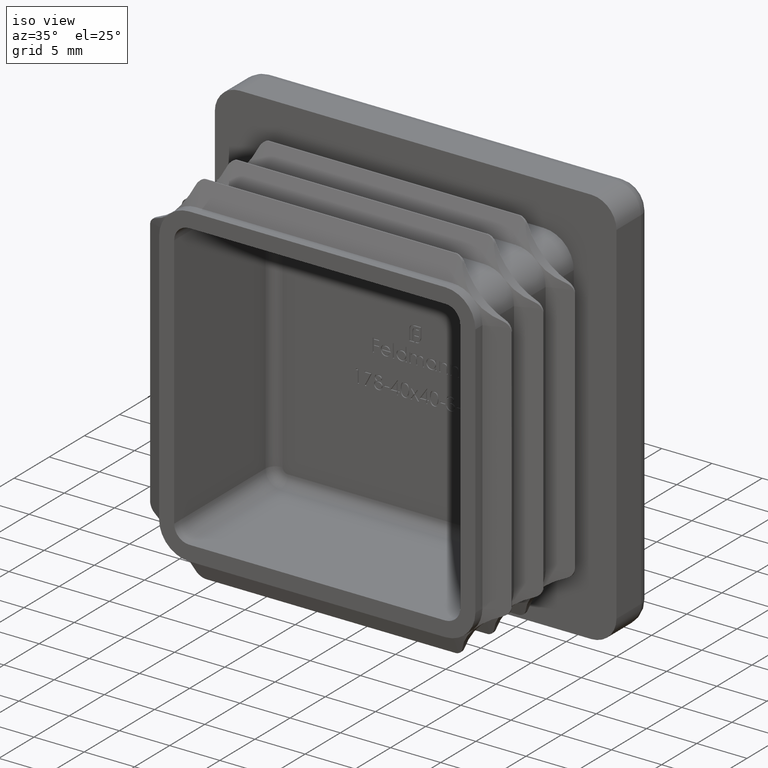
[diagram: clean part render]
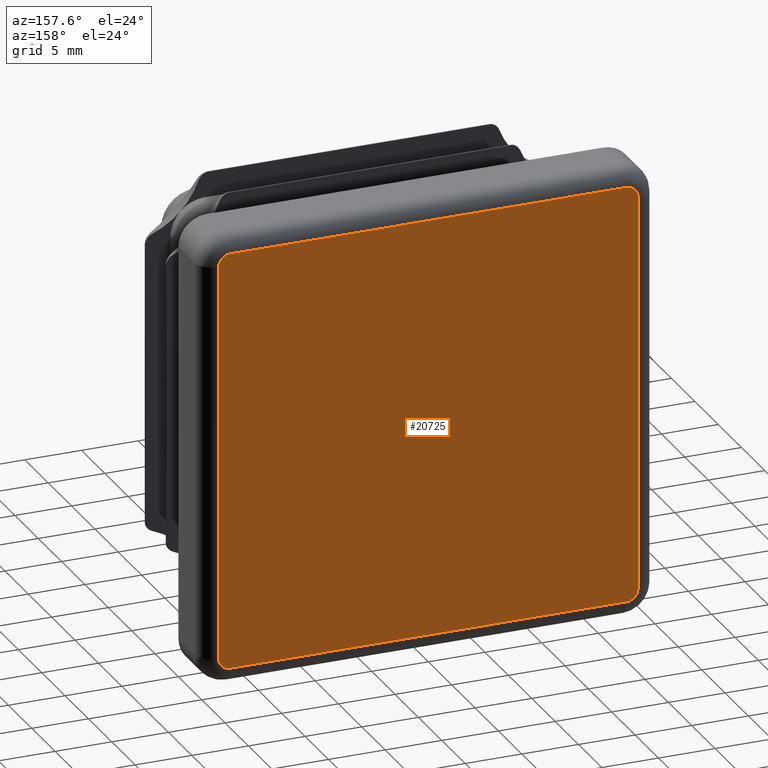
[diagram: tour spotlight — one face highlighted and labeled with its STEP entity id]
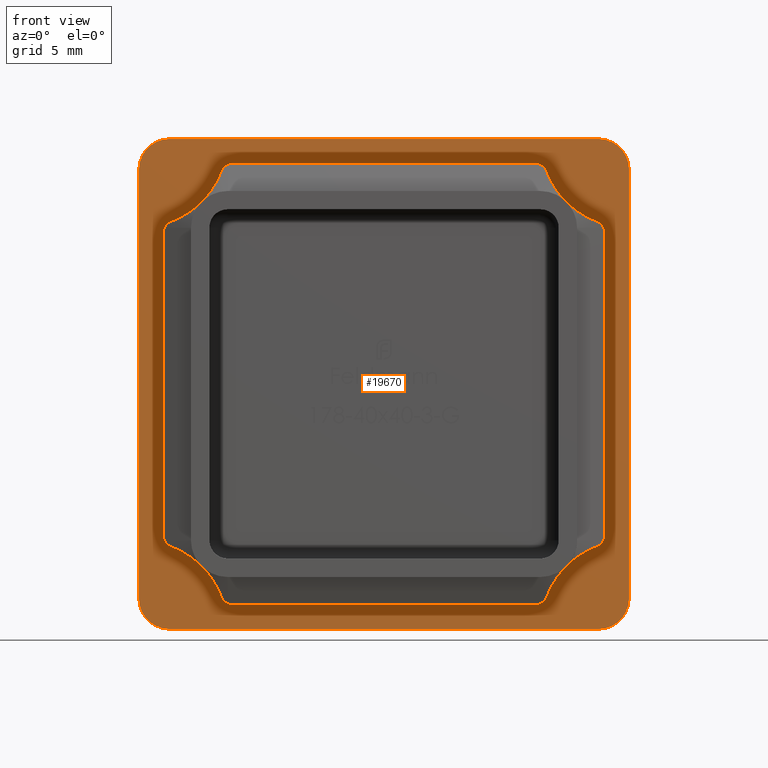
[diagram: tour spotlight — one face highlighted and labeled with its STEP entity id]
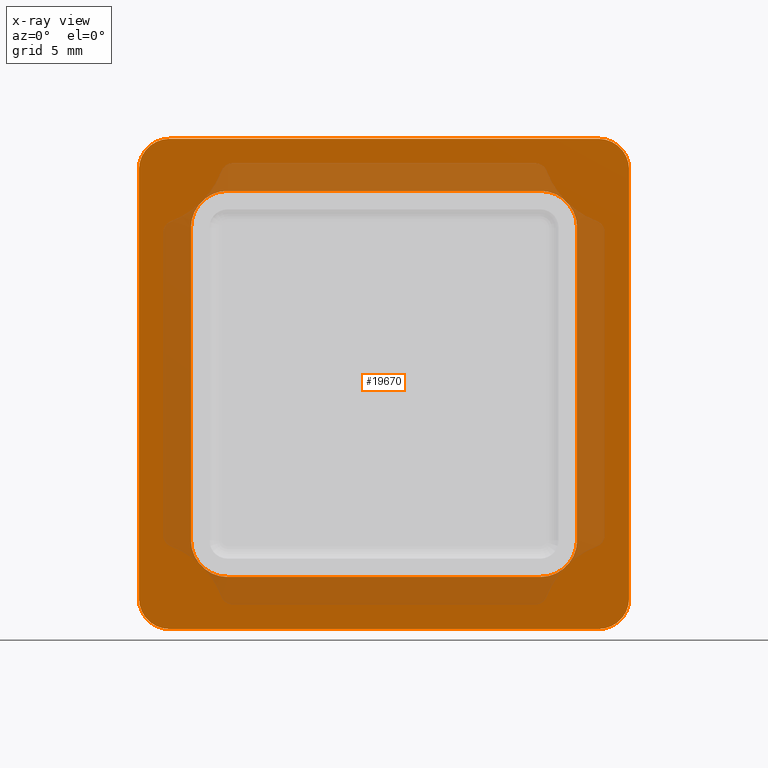
[diagram: x-ray of the same camera — body ghosted, this tour face saturated]
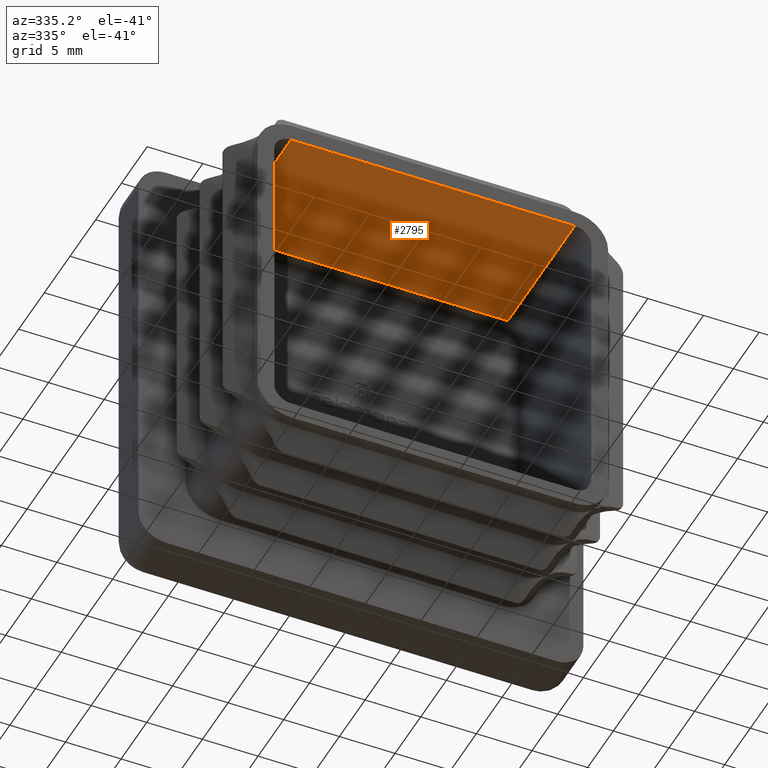
[diagram: tour spotlight — one face highlighted and labeled with its STEP entity id]
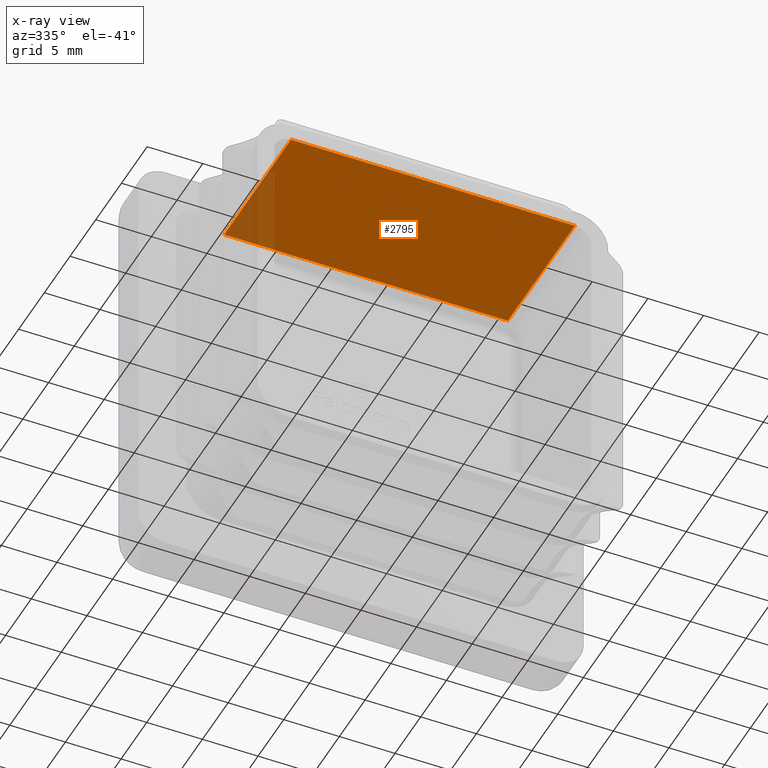
[diagram: x-ray of the same camera — body ghosted, this tour face saturated]
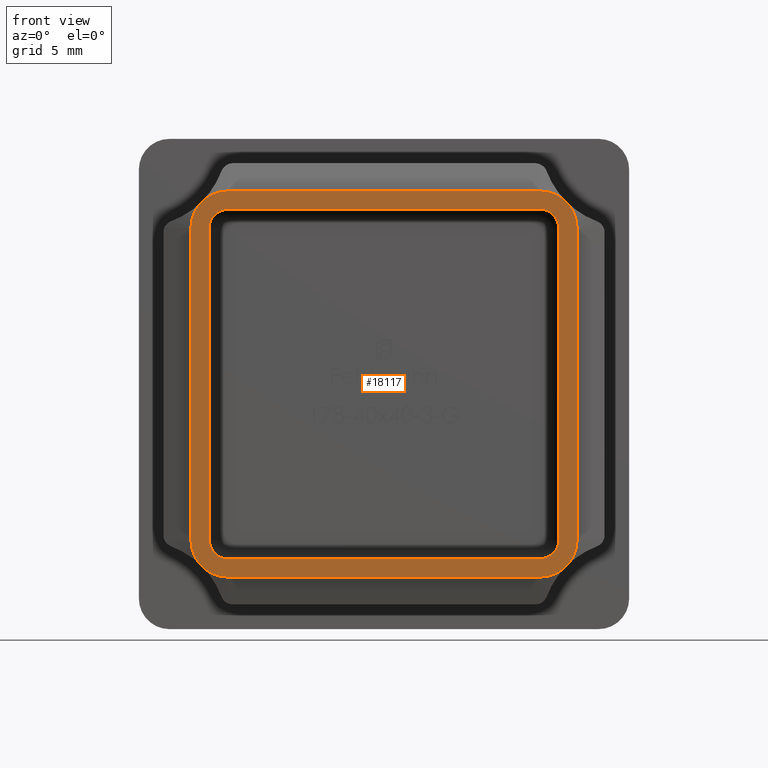
[diagram: tour spotlight — one face highlighted and labeled with its STEP entity id]
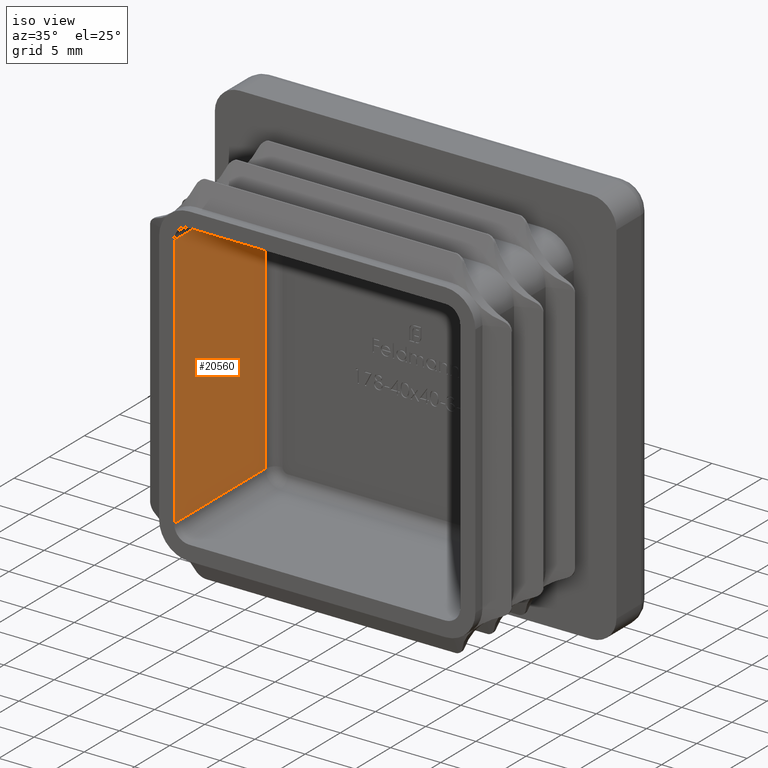
[diagram: tour spotlight — one face highlighted and labeled with its STEP entity id]
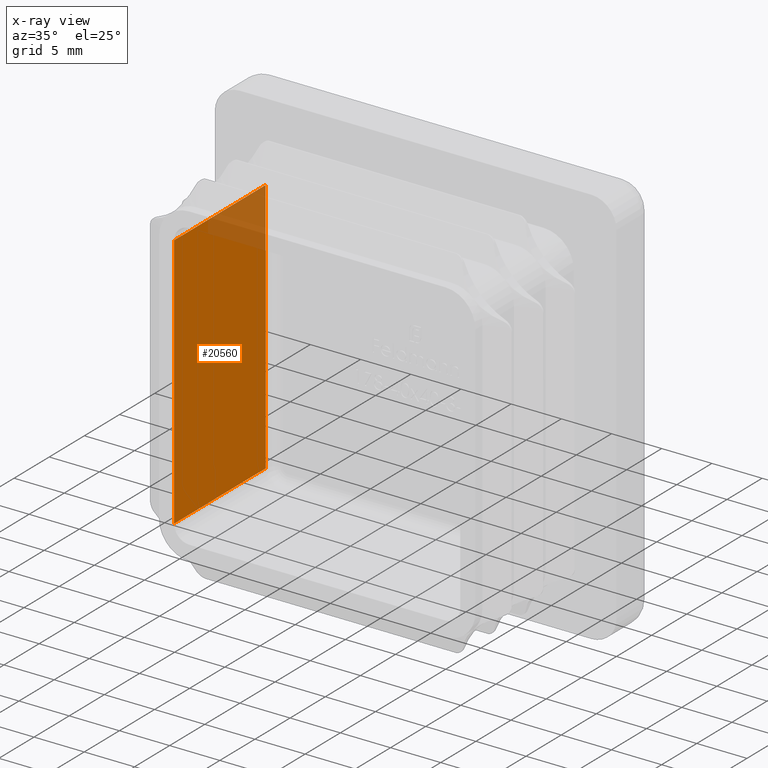
[diagram: x-ray of the same camera — body ghosted, this tour face saturated]
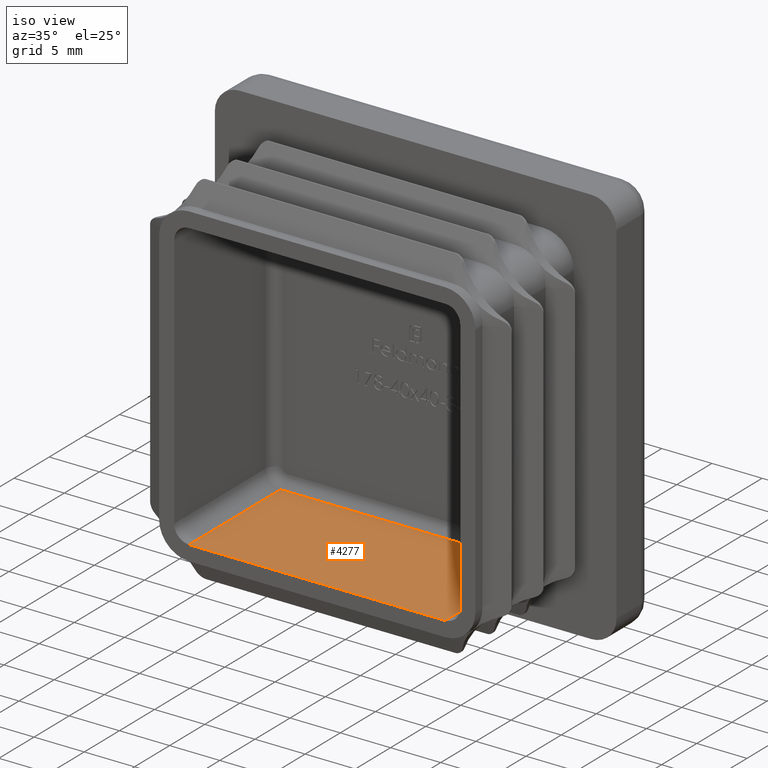
[diagram: tour spotlight — one face highlighted and labeled with its STEP entity id]
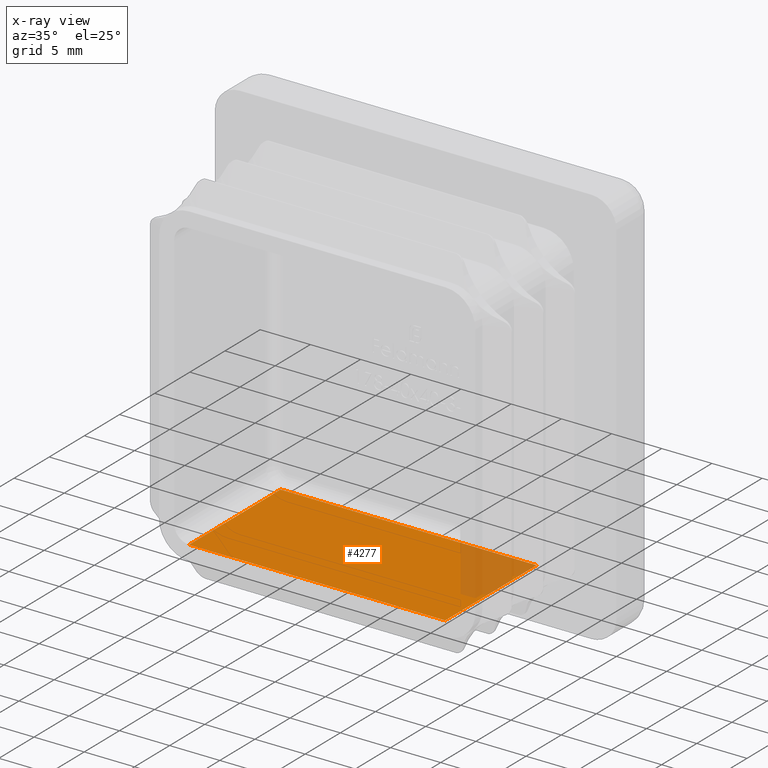
[diagram: x-ray of the same camera — body ghosted, this tour face saturated]
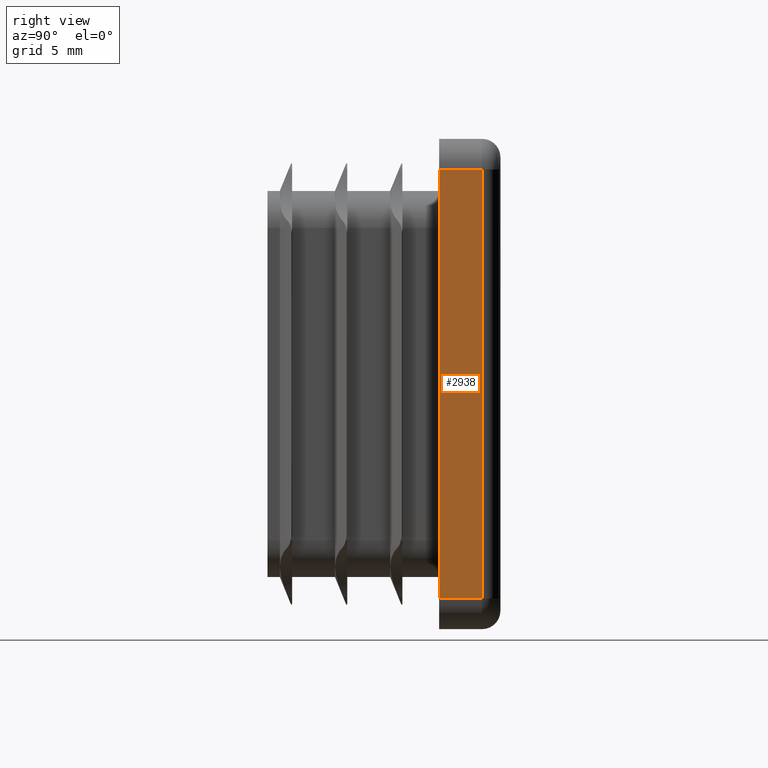
[diagram: tour spotlight — one face highlighted and labeled with its STEP entity id]
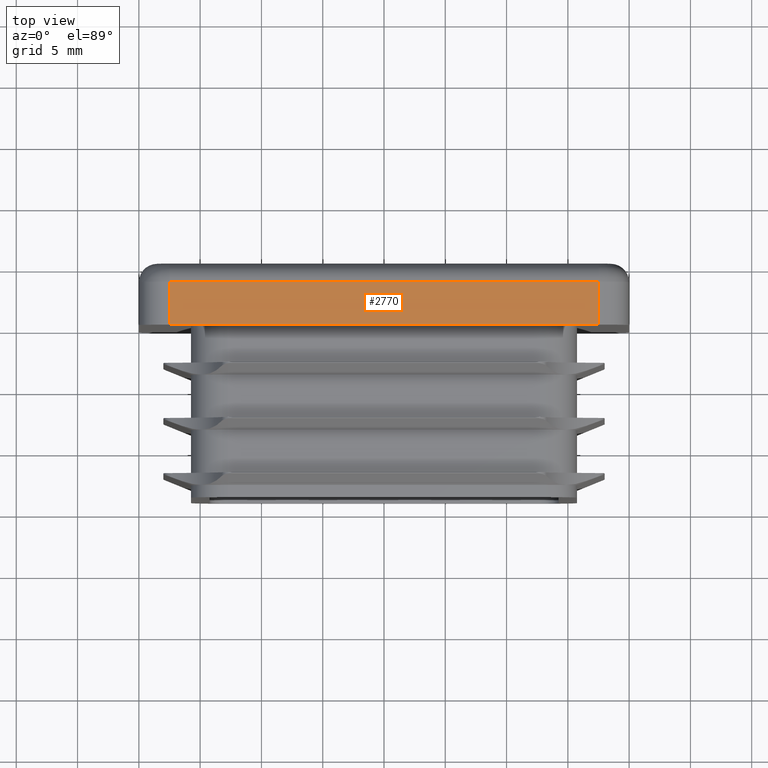
[diagram: tour spotlight — one face highlighted and labeled with its STEP entity id]
A machine part: a face-by-face anatomy tour. The part has 497 B-rep faces; the first image is the clean iso view, then the 8 largest visible faces are spotlighted one at a time (largest first), each with its STEP entity span.

Face 1 — auxiliary view, entity #20725. In plain terms, the highlighted planar face has unit normal (0, 1, 0).
Definition (entity closure, byte-faithful):
#76 = EDGE_CURVE ( 'NONE', #13953, #3182, #12025, .T. ) ;
#83 = PLANE ( 'NONE',  #16216 ) ;
#502 = AXIS2_PLACEMENT_3D ( 'NONE', #12357, #2187, #3598 ) ;
#743 = ORIENTED_EDGE ( 'NONE', *, *, #1273, .T. ) ;
#875 = VERTEX_POINT ( 'NONE', #969 ) ;
#969 = CARTESIAN_POINT ( 'NONE',  ( 18.50000000000000711, 5.000000000000000000, 17.50000000000000711 ) ) ;
#1273 = EDGE_CURVE ( 'NONE', #2897, #15196, #2217, .T. ) ;
#1669 = VERTEX_POINT ( 'NONE', #13270 ) ;
#1856 = CIRCLE ( 'NONE', #7350, 1.000000000000000888 ) ;
#2137 = EDGE_CURVE ( 'NONE', #7413, #875, #2987, .T. ) ;
#2187 = DIRECTION ( 'NONE',  ( 0.000000000000000000, 1.000000000000000000, 0.000000000000000000 ) ) ;
#2217 = LINE ( 'NONE', #13955, #3532 ) ;
#2421 = ORIENTED_EDGE ( 'NONE', *, *, #15098, .T. ) ;
#2897 = VERTEX_POINT ( 'NONE', #20326 ) ;
#2987 = CIRCLE ( 'NONE', #7103, 1.000000000000000888 ) ;
#3182 = VERTEX_POINT ( 'NONE', #16468 ) ;
#3398 = DIRECTION ( 'NONE',  ( 0.000000000000000000, 1.000000000000000000, 0.000000000000000000 ) ) ;
#3532 = VECTOR ( 'NONE', #3810, 1000.000000000000000 ) ;
#3598 = DIRECTION ( 'NONE',  ( 0.000000000000000000, 0.000000000000000000, 1.000000000000000000 ) ) ;
#3810 = DIRECTION ( 'NONE',  ( -1.000000000000000000, 0.000000000000000000, 0.000000000000000000 ) ) ;
#4468 = DIRECTION ( 'NONE',  ( 0.000000000000000000, 0.000000000000000000, 1.000000000000000000 ) ) ;
#4718 = CARTESIAN_POINT ( 'NONE',  ( 18.50000000000000355, 5.000000000000000000, -17.49999999999999645 ) ) ;
#5167 = ORIENTED_EDGE ( 'NONE', *, *, #7731, .T. ) ;
#5865 = ORIENTED_EDGE ( 'NONE', *, *, #76, .T. ) ;
#5988 = EDGE_LOOP ( 'NONE', ( #11065, #9844, #14048, #5167, #743, #2421, #6737, #5865 ) ) ;
#6141 = CARTESIAN_POINT ( 'NONE',  ( 17.50000000000000711, 5.000000000000000000, 18.50000000000000355 ) ) ;
#6332 = DIRECTION ( 'NONE',  ( 0.000000000000000000, 1.000000000000000000, 0.000000000000000000 ) ) ;
#6339 = EDGE_CURVE ( 'NONE', #875, #19855, #12445, .T. ) ;
#6352 = VECTOR ( 'NONE', #14290, 1000.000000000000000 ) ;
#6737 = ORIENTED_EDGE ( 'NONE', *, *, #6769, .T. ) ;
#6769 = EDGE_CURVE ( 'NONE', #1669, #13953, #11868, .T. ) ;
#7103 = AXIS2_PLACEMENT_3D ( 'NONE', #21624, #6332, #4468 ) ;
#7350 = AXIS2_PLACEMENT_3D ( 'NONE', #21500, #9743, #19654 ) ;
#7413 = VERTEX_POINT ( 'NONE', #6141 ) ;
#7428 = CARTESIAN_POINT ( 'NONE',  ( -18.49999999999999645, 5.000000000000000000, 17.50000000000000711 ) ) ;
#7731 = EDGE_CURVE ( 'NONE', #19855, #2897, #12953, .T. ) ;
#9286 = DIRECTION ( 'NONE',  ( 0.000000000000000000, 1.000000000000000000, 0.000000000000000000 ) ) ;
#9740 = EDGE_CURVE ( 'NONE', #3182, #7413, #20570, .T. ) ;
#9743 = DIRECTION ( 'NONE',  ( 0.000000000000000000, 1.000000000000000000, 0.000000000000000000 ) ) ;
#9844 = ORIENTED_EDGE ( 'NONE', *, *, #2137, .T. ) ;
#10998 = CARTESIAN_POINT ( 'NONE',  ( 17.50000000000000711, 5.000000000000000000, -17.49999999999999645 ) ) ;
#11065 = ORIENTED_EDGE ( 'NONE', *, *, #9740, .T. ) ;
#11868 = LINE ( 'NONE', #7428, #6352 ) ;
#11919 = DIRECTION ( 'NONE',  ( 0.000000000000000000, -0.000000000000000000, 1.000000000000000000 ) ) ;
#12025 = CIRCLE ( 'NONE', #502, 1.000000000000000888 ) ;
#12357 = CARTESIAN_POINT ( 'NONE',  ( -17.49999999999999645, 5.000000000000000000, 17.50000000000000355 ) ) ;
#12445 = LINE ( 'NONE', #13711, #20906 ) ;
#12953 = CIRCLE ( 'NONE', #19024, 1.000000000000000888 ) ;
#13270 = CARTESIAN_POINT ( 'NONE',  ( -18.50000000000000000, 5.000000000000000000, -17.49999999999999645 ) ) ;
#13497 = CARTESIAN_POINT ( 'NONE',  ( 0.000000000000000000, 5.000000000000000000, 0.000000000000000000 ) ) ;
#13711 = CARTESIAN_POINT ( 'NONE',  ( 18.50000000000000355, 5.000000000000000000, -17.49999999999999645 ) ) ;
#13953 = VERTEX_POINT ( 'NONE', #19785 ) ;
#13955 = CARTESIAN_POINT ( 'NONE',  ( -17.49999999999999645, 5.000000000000000000, -18.49999999999999645 ) ) ;
#14048 = ORIENTED_EDGE ( 'NONE', *, *, #6339, .T. ) ;
#14290 = DIRECTION ( 'NONE',  ( 8.673617379884035472E-17, -0.000000000000000000, 1.000000000000000000 ) ) ;
#15098 = EDGE_CURVE ( 'NONE', #15196, #1669, #1856, .T. ) ;
#15196 = VERTEX_POINT ( 'NONE', #19866 ) ;
#16216 = AXIS2_PLACEMENT_3D ( 'NONE', #13497, #3398, #11919 ) ;
#16349 = VECTOR ( 'NONE', #19791, 1000.000000000000000 ) ;
#16468 = CARTESIAN_POINT ( 'NONE',  ( -17.49999999999999645, 5.000000000000000000, 18.50000000000000711 ) ) ;
#18075 = CARTESIAN_POINT ( 'NONE',  ( 17.50000000000001066, 5.000000000000000000, 18.50000000000000355 ) ) ;
#18732 = DIRECTION ( 'NONE',  ( -8.673617379884035472E-17, 0.000000000000000000, -1.000000000000000000 ) ) ;
#19024 = AXIS2_PLACEMENT_3D ( 'NONE', #10998, #9286, #19274 ) ;
#19274 = DIRECTION ( 'NONE',  ( 0.000000000000000000, 0.000000000000000000, 1.000000000000000000 ) ) ;
#19654 = DIRECTION ( 'NONE',  ( 0.000000000000000000, 0.000000000000000000, 1.000000000000000000 ) ) ;
#19785 = CARTESIAN_POINT ( 'NONE',  ( -18.49999999999999645, 5.000000000000000000, 17.50000000000000355 ) ) ;
#19791 = DIRECTION ( 'NONE',  ( 1.000000000000000000, -0.000000000000000000, 0.000000000000000000 ) ) ;
#19855 = VERTEX_POINT ( 'NONE', #4718 ) ;
#19866 = CARTESIAN_POINT ( 'NONE',  ( -17.49999999999999645, 5.000000000000000000, -18.49999999999999645 ) ) ;
#20326 = CARTESIAN_POINT ( 'NONE',  ( 17.50000000000000711, 5.000000000000000000, -18.50000000000000000 ) ) ;
#20570 = LINE ( 'NONE', #18075, #16349 ) ;
#20725 = ADVANCED_FACE ( 'NONE', ( #21869 ), #83, .T. ) ;
#20906 = VECTOR ( 'NONE', #18732, 1000.000000000000000 ) ;
#21500 = CARTESIAN_POINT ( 'NONE',  ( -17.49999999999999645, 5.000000000000000000, -17.49999999999999645 ) ) ;
#21624 = CARTESIAN_POINT ( 'NONE',  ( 17.50000000000000711, 5.000000000000000000, 17.50000000000000711 ) ) ;
#21869 = FACE_OUTER_BOUND ( 'NONE', #5988, .T. ) ;

Face 2 — front view, entity #19670. An x-ray twin of the same camera follows (body ghosted, this face saturated) — the face is partly hidden behind the body. In plain terms, the highlighted planar face has unit normal (0, 1, 0).
Definition (entity closure, byte-faithful):
#105 = VERTEX_POINT ( 'NONE', #10587 ) ;
#304 = DIRECTION ( 'NONE',  ( 0.000000000000000000, 0.000000000000000000, 1.000000000000000000 ) ) ;
#381 = DIRECTION ( 'NONE',  ( 0.000000000000000000, -1.000000000000000000, 0.000000000000000000 ) ) ;
#394 = DIRECTION ( 'NONE',  ( -4.163336342344339393E-15, 0.000000000000000000, 1.000000000000000000 ) ) ;
#668 = DIRECTION ( 'NONE',  ( -0.000000000000000000, -0.000000000000000000, 1.000000000000000000 ) ) ;
#745 = EDGE_CURVE ( 'NONE', #8630, #8664, #20262, .T. ) ;
#751 = VERTEX_POINT ( 'NONE', #21510 ) ;
#1225 = FACE_BOUND ( 'NONE', #2468, .T. ) ;
#1283 = DIRECTION ( 'NONE',  ( 8.673617379884035472E-17, 0.000000000000000000, 1.000000000000000000 ) ) ;
#1375 = VECTOR ( 'NONE', #668, 1000.000000000000000 ) ;
#1513 = AXIS2_PLACEMENT_3D ( 'NONE', #8090, #19768, #19987 ) ;
#1735 = CARTESIAN_POINT ( 'NONE',  ( -15.75000000000000000, 0.000000000000000000, -12.75000000000000178 ) ) ;
#1746 = EDGE_CURVE ( 'NONE', #105, #13873, #11494, .T. ) ;
#1782 = CARTESIAN_POINT ( 'NONE',  ( 15.75000000000000000, 0.000000000000000000, -12.75000000000000178 ) ) ;
#1872 = EDGE_CURVE ( 'NONE', #751, #21606, #9919, .T. ) ;
#2008 = VERTEX_POINT ( 'NONE', #9456 ) ;
#2064 = VERTEX_POINT ( 'NONE', #1735 ) ;
#2158 = CIRCLE ( 'NONE', #18394, 3.000000000000002665 ) ;
#2236 = LINE ( 'NONE', #10380, #20263 ) ;
#2468 = EDGE_LOOP ( 'NONE', ( #10266, #14045, #8171, #6992, #18797, #6392, #20020, #5650 ) ) ;
#2724 = AXIS2_PLACEMENT_3D ( 'NONE', #19861, #7758, #9810 ) ;
#2910 = CARTESIAN_POINT ( 'NONE',  ( -19.99999999999999645, 0.000000000000000000, -19.99999999999999645 ) ) ;
#2995 = CARTESIAN_POINT ( 'NONE',  ( -12.75000000000000178, 0.000000000000000000, 15.75000000000000000 ) ) ;
#3086 = AXIS2_PLACEMENT_3D ( 'NONE', #11272, #21618, #4678 ) ;
#3310 = AXIS2_PLACEMENT_3D ( 'NONE', #17457, #381, #304 ) ;
#3351 = AXIS2_PLACEMENT_3D ( 'NONE', #8850, #5453, #394 ) ;
#3428 = VECTOR ( 'NONE', #11678, 1000.000000000000000 ) ;
#3436 = EDGE_CURVE ( 'NONE', #13093, #16418, #2158, .T. ) ;
#3541 = EDGE_CURVE ( 'NONE', #16501, #2008, #14894, .T. ) ;
#3985 = DIRECTION ( 'NONE',  ( 0.000000000000000000, 0.000000000000000000, 1.000000000000000000 ) ) ;
#4273 = CIRCLE ( 'NONE', #3086, 2.999999999999999112 ) ;
#4465 = DIRECTION ( 'NONE',  ( 2.721134864277344162E-16, -0.000000000000000000, -1.000000000000000000 ) ) ;
#4604 = CIRCLE ( 'NONE', #2724, 2.500000000000000444 ) ;
#4678 = DIRECTION ( 'NONE',  ( 0.000000000000000000, 0.000000000000000000, -1.000000000000000000 ) ) ;
#4744 = CARTESIAN_POINT ( 'NONE',  ( 20.00000000000000355, 0.000000000000000000, -19.99999999999999645 ) ) ;
#5161 = EDGE_CURVE ( 'NONE', #13873, #16501, #4273, .T. ) ;
#5223 = EDGE_CURVE ( 'NONE', #751, #8970, #6669, .T. ) ;
#5295 = CARTESIAN_POINT ( 'NONE',  ( -12.75000000000000178, 0.000000000000000000, 12.75000000000000178 ) ) ;
#5453 = DIRECTION ( 'NONE',  ( -0.000000000000000000, -1.000000000000000000, -0.000000000000000000 ) ) ;
#5523 = CARTESIAN_POINT ( 'NONE',  ( -19.99999999999999289, 0.000000000000000000, 20.00000000000000355 ) ) ;
#5650 = ORIENTED_EDGE ( 'NONE', *, *, #3436, .F. ) ;
#5796 = CARTESIAN_POINT ( 'NONE',  ( -12.75000000000000178, 0.000000000000000000, 15.75000000000000355 ) ) ;
#6008 = LINE ( 'NONE', #2995, #14461 ) ;
#6275 = DIRECTION ( 'NONE',  ( 1.000000000000000000, 0.000000000000000000, 0.000000000000000000 ) ) ;
#6392 = ORIENTED_EDGE ( 'NONE', *, *, #15679, .F. ) ;
#6417 = CARTESIAN_POINT ( 'NONE',  ( -17.49999999999999645, 0.000000000000000000, 17.50000000000000355 ) ) ;
#6669 = LINE ( 'NONE', #4744, #3428 ) ;
#6917 = ORIENTED_EDGE ( 'NONE', *, *, #5223, .F. ) ;
#6992 = ORIENTED_EDGE ( 'NONE', *, *, #5161, .F. ) ;
#7113 = ORIENTED_EDGE ( 'NONE', *, *, #1872, .T. ) ;
#7654 = VERTEX_POINT ( 'NONE', #17404 ) ;
#7758 = DIRECTION ( 'NONE',  ( -0.000000000000000000, -1.000000000000000000, -0.000000000000000000 ) ) ;
#8087 = CARTESIAN_POINT ( 'NONE',  ( -17.49999999999999645, 0.000000000000000000, -19.99999999999999645 ) ) ;
#8090 = CARTESIAN_POINT ( 'NONE',  ( -12.75000000000000178, -0.000000000000000000, -12.75000000000000178 ) ) ;
#8171 = ORIENTED_EDGE ( 'NONE', *, *, #3541, .F. ) ;
#8524 = ORIENTED_EDGE ( 'NONE', *, *, #12142, .T. ) ;
#8630 = VERTEX_POINT ( 'NONE', #21428 ) ;
#8664 = VERTEX_POINT ( 'NONE', #18571 ) ;
#8850 = CARTESIAN_POINT ( 'NONE',  ( 17.50000000000000711, 0.000000000000000000, 17.50000000000000711 ) ) ;
#8970 = VERTEX_POINT ( 'NONE', #20123 ) ;
#9233 = LINE ( 'NONE', #5523, #18203 ) ;
#9340 = ORIENTED_EDGE ( 'NONE', *, *, #745, .F. ) ;
#9428 = CARTESIAN_POINT ( 'NONE',  ( -15.75000000000000711, 0.000000000000000000, 12.75000000000000178 ) ) ;
#9456 = CARTESIAN_POINT ( 'NONE',  ( 15.75000000000000000, 0.000000000000000000, 12.75000000000000178 ) ) ;
#9734 = FACE_OUTER_BOUND ( 'NONE', #17920, .T. ) ;
#9801 = DIRECTION ( 'NONE',  ( -0.000000000000000000, -1.000000000000000000, -0.000000000000000000 ) ) ;
#9810 = DIRECTION ( 'NONE',  ( 0.000000000000000000, 0.000000000000000000, 1.000000000000000000 ) ) ;
#9919 = CIRCLE ( 'NONE', #3351, 2.499999999999998668 ) ;
#10266 = ORIENTED_EDGE ( 'NONE', *, *, #10863, .F. ) ;
#10380 = CARTESIAN_POINT ( 'NONE',  ( -19.99999999999999645, 0.000000000000000000, -19.99999999999999645 ) ) ;
#10397 = VERTEX_POINT ( 'NONE', #8087 ) ;
#10401 = DIRECTION ( 'NONE',  ( 0.000000000000000000, -1.000000000000000000, 0.000000000000000000 ) ) ;
#10425 = AXIS2_PLACEMENT_3D ( 'NONE', #16993, #15457, #16916 ) ;
#10587 = CARTESIAN_POINT ( 'NONE',  ( -12.75000000000000178, 0.000000000000000000, -15.75000000000000000 ) ) ;
#10623 = DIRECTION ( 'NONE',  ( 0.000000000000000000, 0.000000000000000000, 1.000000000000000000 ) ) ;
#10791 = CARTESIAN_POINT ( 'NONE',  ( 17.50000000000001066, 0.000000000000000000, 20.00000000000000355 ) ) ;
#10863 = EDGE_CURVE ( 'NONE', #13287, #13093, #6008, .T. ) ;
#11272 = CARTESIAN_POINT ( 'NONE',  ( 12.75000000000000178, 0.000000000000000000, -12.75000000000000178 ) ) ;
#11280 = VECTOR ( 'NONE', #1283, 1000.000000000000000 ) ;
#11494 = LINE ( 'NONE', #16383, #19451 ) ;
#11678 = DIRECTION ( 'NONE',  ( -8.673617379884035472E-17, -0.000000000000000000, -1.000000000000000000 ) ) ;
#11731 = DIRECTION ( 'NONE',  ( -1.000000000000000000, -0.000000000000000000, -0.000000000000000000 ) ) ;
#12142 = EDGE_CURVE ( 'NONE', #18968, #8970, #4604, .T. ) ;
#12165 = DIRECTION ( 'NONE',  ( 1.000000000000000000, 0.000000000000000000, 0.000000000000000000 ) ) ;
#12612 = CARTESIAN_POINT ( 'NONE',  ( 15.75000000000000000, 0.000000000000000000, 12.75000000000000178 ) ) ;
#12765 = ORIENTED_EDGE ( 'NONE', *, *, #18241, .F. ) ;
#13093 = VERTEX_POINT ( 'NONE', #5796 ) ;
#13169 = PLANE ( 'NONE',  #10425 ) ;
#13287 = VERTEX_POINT ( 'NONE', #13909 ) ;
#13873 = VERTEX_POINT ( 'NONE', #17552 ) ;
#13909 = CARTESIAN_POINT ( 'NONE',  ( 12.74999999999999822, 0.000000000000000000, 15.75000000000000000 ) ) ;
#14045 = ORIENTED_EDGE ( 'NONE', *, *, #14122, .F. ) ;
#14122 = EDGE_CURVE ( 'NONE', #2008, #13287, #14367, .T. ) ;
#14236 = ORIENTED_EDGE ( 'NONE', *, *, #20611, .F. ) ;
#14367 = CIRCLE ( 'NONE', #3310, 2.999999999999999112 ) ;
#14461 = VECTOR ( 'NONE', #11731, 1000.000000000000000 ) ;
#14894 = LINE ( 'NONE', #12612, #1375 ) ;
#15457 = DIRECTION ( 'NONE',  ( 0.000000000000000000, 1.000000000000000000, 0.000000000000000000 ) ) ;
#15552 = EDGE_CURVE ( 'NONE', #16418, #2064, #16958, .T. ) ;
#15679 = EDGE_CURVE ( 'NONE', #2064, #105, #16682, .T. ) ;
#15888 = CARTESIAN_POINT ( 'NONE',  ( -17.49999999999999645, 0.000000000000000000, -17.49999999999999645 ) ) ;
#15911 = VECTOR ( 'NONE', #4465, 1000.000000000000000 ) ;
#16016 = AXIS2_PLACEMENT_3D ( 'NONE', #15888, #21150, #3985 ) ;
#16359 = CIRCLE ( 'NONE', #17553, 2.499999999999998668 ) ;
#16383 = CARTESIAN_POINT ( 'NONE',  ( -12.75000000000000178, -0.000000000000000000, -15.75000000000000000 ) ) ;
#16418 = VERTEX_POINT ( 'NONE', #16535 ) ;
#16501 = VERTEX_POINT ( 'NONE', #1782 ) ;
#16535 = CARTESIAN_POINT ( 'NONE',  ( -15.75000000000000711, 0.000000000000000000, 12.75000000000000178 ) ) ;
#16682 = CIRCLE ( 'NONE', #1513, 2.999999999999999112 ) ;
#16843 = ORIENTED_EDGE ( 'NONE', *, *, #18428, .T. ) ;
#16916 = DIRECTION ( 'NONE',  ( 0.000000000000000000, -0.000000000000000000, 1.000000000000000000 ) ) ;
#16958 = LINE ( 'NONE', #9428, #15911 ) ;
#16993 = CARTESIAN_POINT ( 'NONE',  ( 0.000000000000000000, 0.000000000000000000, 0.000000000000000000 ) ) ;
#17146 = CIRCLE ( 'NONE', #16016, 2.500000000000000444 ) ;
#17404 = CARTESIAN_POINT ( 'NONE',  ( -17.49999999999999645, 0.000000000000000000, 20.00000000000000355 ) ) ;
#17457 = CARTESIAN_POINT ( 'NONE',  ( 12.74999999999999822, 0.000000000000000000, 12.75000000000000178 ) ) ;
#17552 = CARTESIAN_POINT ( 'NONE',  ( 12.75000000000000178, 0.000000000000000000, -15.75000000000000000 ) ) ;
#17553 = AXIS2_PLACEMENT_3D ( 'NONE', #6417, #9801, #18194 ) ;
#17920 = EDGE_LOOP ( 'NONE', ( #14236, #8524, #6917, #7113, #12765, #16843, #9340, #21835 ) ) ;
#18033 = EDGE_CURVE ( 'NONE', #8630, #10397, #17146, .T. ) ;
#18194 = DIRECTION ( 'NONE',  ( 0.000000000000000000, 0.000000000000000000, 1.000000000000000000 ) ) ;
#18203 = VECTOR ( 'NONE', #12165, 1000.000000000000000 ) ;
#18241 = EDGE_CURVE ( 'NONE', #7654, #21606, #9233, .T. ) ;
#18394 = AXIS2_PLACEMENT_3D ( 'NONE', #5295, #10401, #10623 ) ;
#18428 = EDGE_CURVE ( 'NONE', #7654, #8664, #16359, .T. ) ;
#18571 = CARTESIAN_POINT ( 'NONE',  ( -19.99999999999999289, 0.000000000000000000, 17.50000000000000711 ) ) ;
#18797 = ORIENTED_EDGE ( 'NONE', *, *, #1746, .F. ) ;
#18968 = VERTEX_POINT ( 'NONE', #21046 ) ;
#19451 = VECTOR ( 'NONE', #6275, 1000.000000000000000 ) ;
#19670 = ADVANCED_FACE ( 'NONE', ( #1225, #9734 ), #13169, .F. ) ;
#19768 = DIRECTION ( 'NONE',  ( 0.000000000000000000, -1.000000000000000000, 0.000000000000000000 ) ) ;
#19861 = CARTESIAN_POINT ( 'NONE',  ( 17.50000000000000711, 0.000000000000000000, -17.49999999999999645 ) ) ;
#19987 = DIRECTION ( 'NONE',  ( 0.000000000000000000, 0.000000000000000000, 1.000000000000000000 ) ) ;
#20020 = ORIENTED_EDGE ( 'NONE', *, *, #15552, .F. ) ;
#20123 = CARTESIAN_POINT ( 'NONE',  ( 20.00000000000000355, 0.000000000000000000, -17.49999999999999645 ) ) ;
#20262 = LINE ( 'NONE', #2910, #11280 ) ;
#20263 = VECTOR ( 'NONE', #20722, 1000.000000000000000 ) ;
#20611 = EDGE_CURVE ( 'NONE', #18968, #10397, #2236, .T. ) ;
#20722 = DIRECTION ( 'NONE',  ( -1.000000000000000000, -0.000000000000000000, -0.000000000000000000 ) ) ;
#21046 = CARTESIAN_POINT ( 'NONE',  ( 17.50000000000000711, 0.000000000000000000, -19.99999999999999645 ) ) ;
#21150 = DIRECTION ( 'NONE',  ( -0.000000000000000000, -1.000000000000000000, -0.000000000000000000 ) ) ;
#21428 = CARTESIAN_POINT ( 'NONE',  ( -19.99999999999999645, 0.000000000000000000, -17.49999999999999645 ) ) ;
#21510 = CARTESIAN_POINT ( 'NONE',  ( 20.00000000000000711, 0.000000000000000000, 17.50000000000000711 ) ) ;
#21606 = VERTEX_POINT ( 'NONE', #10791 ) ;
#21618 = DIRECTION ( 'NONE',  ( 0.000000000000000000, -1.000000000000000000, 0.000000000000000000 ) ) ;
#21835 = ORIENTED_EDGE ( 'NONE', *, *, #18033, .T. ) ;

Face 3 — auxiliary view, entity #2795. An x-ray twin of the same camera follows (body ghosted, this face saturated) — the face is partly hidden behind the body. In plain terms, the highlighted planar face has unit normal (0, 0, -1).
Definition (entity closure, byte-faithful):
#408 = CARTESIAN_POINT ( 'NONE',  ( 12.74999999999999822, -14.00000000000000000, 14.25000000000000000 ) ) ;
#1303 = ORIENTED_EDGE ( 'NONE', *, *, #21648, .F. ) ;
#1606 = EDGE_LOOP ( 'NONE', ( #10335, #4313, #1303, #9480 ) ) ;
#2240 = DIRECTION ( 'NONE',  ( -0.000000000000000000, 1.000000000000000000, -0.000000000000000000 ) ) ;
#2548 = CARTESIAN_POINT ( 'NONE',  ( -12.75000000000000178, -14.00000000000000000, 14.25000000000000000 ) ) ;
#2705 = FACE_OUTER_BOUND ( 'NONE', #1606, .T. ) ;
#2795 = ADVANCED_FACE ( 'NONE', ( #2705 ), #14507, .T. ) ;
#3832 = VECTOR ( 'NONE', #2240, 1000.000000000000000 ) ;
#4189 = EDGE_CURVE ( 'NONE', #5022, #9064, #7751, .T. ) ;
#4313 = ORIENTED_EDGE ( 'NONE', *, *, #13415, .T. ) ;
#4681 = LINE ( 'NONE', #20368, #15261 ) ;
#4806 = DIRECTION ( 'NONE',  ( -1.000000000000000000, -0.000000000000000000, -0.000000000000000000 ) ) ;
#5022 = VERTEX_POINT ( 'NONE', #17392 ) ;
#6165 = DIRECTION ( 'NONE',  ( -1.000000000000000000, 0.000000000000000000, -0.000000000000000000 ) ) ;
#7751 = LINE ( 'NONE', #20111, #8785 ) ;
#8785 = VECTOR ( 'NONE', #4806, 1000.000000000000000 ) ;
#9064 = VERTEX_POINT ( 'NONE', #12289 ) ;
#9239 = DIRECTION ( 'NONE',  ( 1.000000000000000000, -0.000000000000000000, -0.000000000000000000 ) ) ;
#9480 = ORIENTED_EDGE ( 'NONE', *, *, #4189, .T. ) ;
#9865 = EDGE_CURVE ( 'NONE', #9064, #12987, #4681, .T. ) ;
#10335 = ORIENTED_EDGE ( 'NONE', *, *, #9865, .T. ) ;
#12289 = CARTESIAN_POINT ( 'NONE',  ( -12.75000000000000178, -14.00000000000000000, 14.25000000000000000 ) ) ;
#12424 = CARTESIAN_POINT ( 'NONE',  ( -12.75000000000000178, -0.9999999999999991118, 14.25000000000000000 ) ) ;
#12583 = LINE ( 'NONE', #408, #3832 ) ;
#12626 = VERTEX_POINT ( 'NONE', #21330 ) ;
#12876 = DIRECTION ( 'NONE',  ( 0.000000000000000000, 0.000000000000000000, -1.000000000000000000 ) ) ;
#12987 = VERTEX_POINT ( 'NONE', #17529 ) ;
#13415 = EDGE_CURVE ( 'NONE', #12987, #12626, #18281, .T. ) ;
#14090 = VECTOR ( 'NONE', #9239, 1000.000000000000000 ) ;
#14507 = PLANE ( 'NONE',  #14595 ) ;
#14595 = AXIS2_PLACEMENT_3D ( 'NONE', #2548, #12876, #6165 ) ;
#15261 = VECTOR ( 'NONE', #21864, 1000.000000000000000 ) ;
#17392 = CARTESIAN_POINT ( 'NONE',  ( 12.74999999999999822, -14.00000000000000000, 14.25000000000000178 ) ) ;
#17529 = CARTESIAN_POINT ( 'NONE',  ( -12.75000000000000178, -0.9999999999999991118, 14.25000000000000000 ) ) ;
#18281 = LINE ( 'NONE', #12424, #14090 ) ;
#20111 = CARTESIAN_POINT ( 'NONE',  ( -12.75000000000000178, -14.00000000000000000, 14.25000000000000000 ) ) ;
#20368 = CARTESIAN_POINT ( 'NONE',  ( -12.75000000000000178, -14.00000000000000000, 14.25000000000000000 ) ) ;
#21330 = CARTESIAN_POINT ( 'NONE',  ( 12.74999999999999822, -0.9999999999999991118, 14.25000000000000000 ) ) ;
#21648 = EDGE_CURVE ( 'NONE', #5022, #12626, #12583, .T. ) ;
#21864 = DIRECTION ( 'NONE',  ( -0.000000000000000000, 1.000000000000000000, -0.000000000000000000 ) ) ;

Face 4 — front view, entity #18117. In plain terms, the highlighted planar face has unit normal (0, -1, 0).
Definition (entity closure, byte-faithful):
#461 = FACE_OUTER_BOUND ( 'NONE', #4499, .T. ) ;
#516 = DIRECTION ( 'NONE',  ( 0.000000000000000000, -1.000000000000000000, 0.000000000000000000 ) ) ;
#675 = VECTOR ( 'NONE', #6035, 1000.000000000000000 ) ;
#856 = EDGE_CURVE ( 'NONE', #8361, #7722, #7828, .T. ) ;
#924 = EDGE_CURVE ( 'NONE', #18624, #18327, #16544, .T. ) ;
#963 = LINE ( 'NONE', #2566, #675 ) ;
#998 = PLANE ( 'NONE',  #3964 ) ;
#1021 = AXIS2_PLACEMENT_3D ( 'NONE', #18154, #15068, #16826 ) ;
#1124 = CARTESIAN_POINT ( 'NONE',  ( 12.75000000000000178, -14.00000000000000000, -15.75000000000000000 ) ) ;
#1140 = DIRECTION ( 'NONE',  ( 0.000000000000000000, -1.000000000000000000, 0.000000000000000000 ) ) ;
#1147 = CARTESIAN_POINT ( 'NONE',  ( 12.75000000000000178, -14.00000000000000000, -12.75000000000000178 ) ) ;
#1574 = AXIS2_PLACEMENT_3D ( 'NONE', #4351, #1140, #2529 ) ;
#1678 = ORIENTED_EDGE ( 'NONE', *, *, #5184, .T. ) ;
#1727 = CIRCLE ( 'NONE', #1021, 1.499999999999999556 ) ;
#1736 = CIRCLE ( 'NONE', #5880, 3.000000000000002665 ) ;
#2529 = DIRECTION ( 'NONE',  ( 0.000000000000000000, 0.000000000000000000, 1.000000000000000000 ) ) ;
#2566 = CARTESIAN_POINT ( 'NONE',  ( -15.75000000000000711, -14.00000000000000000, 12.75000000000000178 ) ) ;
#2730 = CARTESIAN_POINT ( 'NONE',  ( -14.25000000000000355, -14.00000000000000000, 12.75000000000000178 ) ) ;
#2745 = CARTESIAN_POINT ( 'NONE',  ( -12.75000000000000178, -14.00000000000000000, -12.75000000000000178 ) ) ;
#3245 = DIRECTION ( 'NONE',  ( 0.000000000000000000, 0.000000000000000000, 1.000000000000000000 ) ) ;
#3420 = VERTEX_POINT ( 'NONE', #12238 ) ;
#3463 = EDGE_CURVE ( 'NONE', #5570, #11797, #8809, .T. ) ;
#3907 = CARTESIAN_POINT ( 'NONE',  ( -12.75000000000000178, -14.00000000000000000, -14.25000000000000000 ) ) ;
#3964 = AXIS2_PLACEMENT_3D ( 'NONE', #1147, #12861, #16259 ) ;
#4189 = EDGE_CURVE ( 'NONE', #5022, #9064, #7751, .T. ) ;
#4254 = ORIENTED_EDGE ( 'NONE', *, *, #856, .F. ) ;
#4285 = EDGE_CURVE ( 'NONE', #11797, #5022, #14852, .T. ) ;
#4330 = CARTESIAN_POINT ( 'NONE',  ( -12.75000000000000178, -14.00000000000000000, 15.75000000000000355 ) ) ;
#4351 = CARTESIAN_POINT ( 'NONE',  ( -12.75000000000000178, -14.00000000000000000, 12.75000000000000178 ) ) ;
#4469 = CIRCLE ( 'NONE', #1574, 1.500000000000001332 ) ;
#4499 = EDGE_LOOP ( 'NONE', ( #21797, #10655, #1678, #17550, #19844, #21690, #19200, #14800 ) ) ;
#4806 = DIRECTION ( 'NONE',  ( -1.000000000000000000, -0.000000000000000000, -0.000000000000000000 ) ) ;
#4988 = CARTESIAN_POINT ( 'NONE',  ( 12.75000000000000178, -14.00000000000000000, -12.75000000000000178 ) ) ;
#5022 = VERTEX_POINT ( 'NONE', #17392 ) ;
#5184 = EDGE_CURVE ( 'NONE', #3420, #18624, #21214, .T. ) ;
#5193 = AXIS2_PLACEMENT_3D ( 'NONE', #4988, #8175, #8321 ) ;
#5203 = CARTESIAN_POINT ( 'NONE',  ( -12.75000000000000178, -14.00000000000000000, -12.75000000000000178 ) ) ;
#5246 = CARTESIAN_POINT ( 'NONE',  ( 12.74999999999999822, -14.00000000000000000, 12.75000000000000178 ) ) ;
#5519 = CARTESIAN_POINT ( 'NONE',  ( 14.24999999999999645, -14.00000000000000000, 12.75000000000000178 ) ) ;
#5570 = VERTEX_POINT ( 'NONE', #9243 ) ;
#5880 = AXIS2_PLACEMENT_3D ( 'NONE', #17393, #516, #7295 ) ;
#6035 = DIRECTION ( 'NONE',  ( 2.721134864277344162E-16, -0.000000000000000000, -1.000000000000000000 ) ) ;
#6184 = DIRECTION ( 'NONE',  ( 0.000000000000000000, -1.000000000000000000, 0.000000000000000000 ) ) ;
#6262 = DIRECTION ( 'NONE',  ( 1.360567432138672081E-16, -0.000000000000000000, -1.000000000000000000 ) ) ;
#6481 = AXIS2_PLACEMENT_3D ( 'NONE', #2745, #19570, #14625 ) ;
#6521 = VECTOR ( 'NONE', #8025, 1000.000000000000000 ) ;
#6708 = CIRCLE ( 'NONE', #5193, 2.999999999999999112 ) ;
#6822 = CARTESIAN_POINT ( 'NONE',  ( -14.25000000000000355, -14.00000000000000000, 12.75000000000000178 ) ) ;
#6926 = CARTESIAN_POINT ( 'NONE',  ( -15.75000000000000711, -14.00000000000000000, 12.75000000000000178 ) ) ;
#7065 = DIRECTION ( 'NONE',  ( -0.000000000000000000, -0.000000000000000000, 1.000000000000000000 ) ) ;
#7295 = DIRECTION ( 'NONE',  ( 0.000000000000000000, 0.000000000000000000, 1.000000000000000000 ) ) ;
#7303 = ORIENTED_EDGE ( 'NONE', *, *, #4189, .F. ) ;
#7646 = CIRCLE ( 'NONE', #17324, 1.499999999999999556 ) ;
#7722 = VERTEX_POINT ( 'NONE', #7750 ) ;
#7750 = CARTESIAN_POINT ( 'NONE',  ( -14.25000000000000000, -14.00000000000000000, -12.75000000000000178 ) ) ;
#7751 = LINE ( 'NONE', #20111, #8785 ) ;
#7801 = VERTEX_POINT ( 'NONE', #1124 ) ;
#7828 = LINE ( 'NONE', #2730, #21848 ) ;
#8015 = DIRECTION ( 'NONE',  ( 0.000000000000000000, 0.000000000000000000, 1.000000000000000000 ) ) ;
#8025 = DIRECTION ( 'NONE',  ( -1.000000000000000000, -0.000000000000000000, -0.000000000000000000 ) ) ;
#8175 = DIRECTION ( 'NONE',  ( 0.000000000000000000, -1.000000000000000000, 0.000000000000000000 ) ) ;
#8321 = DIRECTION ( 'NONE',  ( 0.000000000000000000, 0.000000000000000000, -1.000000000000000000 ) ) ;
#8361 = VERTEX_POINT ( 'NONE', #6822 ) ;
#8369 = AXIS2_PLACEMENT_3D ( 'NONE', #9784, #6184, #8015 ) ;
#8537 = EDGE_CURVE ( 'NONE', #9064, #8361, #4469, .T. ) ;
#8563 = EDGE_CURVE ( 'NONE', #12167, #8590, #9508, .T. ) ;
#8590 = VERTEX_POINT ( 'NONE', #21217 ) ;
#8716 = DIRECTION ( 'NONE',  ( 0.000000000000000000, 0.000000000000000000, 1.000000000000000000 ) ) ;
#8767 = DIRECTION ( 'NONE',  ( -1.360567432138672081E-16, -0.000000000000000000, 1.000000000000000000 ) ) ;
#8776 = EDGE_CURVE ( 'NONE', #7722, #12167, #7646, .T. ) ;
#8785 = VECTOR ( 'NONE', #4806, 1000.000000000000000 ) ;
#8809 = LINE ( 'NONE', #5519, #20455 ) ;
#8944 = EDGE_CURVE ( 'NONE', #11174, #3420, #18737, .T. ) ;
#9014 = VECTOR ( 'NONE', #21737, 1000.000000000000000 ) ;
#9064 = VERTEX_POINT ( 'NONE', #12289 ) ;
#9243 = CARTESIAN_POINT ( 'NONE',  ( 14.25000000000000000, -14.00000000000000000, -12.75000000000000178 ) ) ;
#9271 = CARTESIAN_POINT ( 'NONE',  ( 15.75000000000000000, -14.00000000000000000, -12.75000000000000178 ) ) ;
#9508 = LINE ( 'NONE', #3907, #16878 ) ;
#9784 = CARTESIAN_POINT ( 'NONE',  ( 12.74999999999999822, -14.00000000000000000, 12.75000000000000178 ) ) ;
#10090 = EDGE_CURVE ( 'NONE', #18327, #20536, #1736, .T. ) ;
#10275 = EDGE_CURVE ( 'NONE', #20536, #10928, #963, .T. ) ;
#10278 = VECTOR ( 'NONE', #7065, 1000.000000000000000 ) ;
#10342 = CARTESIAN_POINT ( 'NONE',  ( 14.24999999999999645, -14.00000000000000000, 12.75000000000000178 ) ) ;
#10655 = ORIENTED_EDGE ( 'NONE', *, *, #8944, .T. ) ;
#10767 = EDGE_CURVE ( 'NONE', #8590, #5570, #1727, .T. ) ;
#10928 = VERTEX_POINT ( 'NONE', #13298 ) ;
#11174 = VERTEX_POINT ( 'NONE', #9271 ) ;
#11450 = CARTESIAN_POINT ( 'NONE',  ( -12.75000000000000178, -14.00000000000000000, -15.75000000000000000 ) ) ;
#11797 = VERTEX_POINT ( 'NONE', #10342 ) ;
#12076 = EDGE_CURVE ( 'NONE', #10928, #16004, #18082, .T. ) ;
#12167 = VERTEX_POINT ( 'NONE', #21788 ) ;
#12168 = EDGE_LOOP ( 'NONE', ( #4254, #15597, #7303, #18263, #19029, #16768, #16200, #16339 ) ) ;
#12238 = CARTESIAN_POINT ( 'NONE',  ( 15.75000000000000000, -14.00000000000000000, 12.75000000000000178 ) ) ;
#12289 = CARTESIAN_POINT ( 'NONE',  ( -12.75000000000000178, -14.00000000000000000, 14.25000000000000000 ) ) ;
#12861 = DIRECTION ( 'NONE',  ( 0.000000000000000000, -1.000000000000000000, 0.000000000000000000 ) ) ;
#13298 = CARTESIAN_POINT ( 'NONE',  ( -15.75000000000000000, -14.00000000000000000, -12.75000000000000178 ) ) ;
#13452 = AXIS2_PLACEMENT_3D ( 'NONE', #5246, #13603, #8716 ) ;
#13524 = LINE ( 'NONE', #11450, #9014 ) ;
#13603 = DIRECTION ( 'NONE',  ( 0.000000000000000000, -1.000000000000000000, 0.000000000000000000 ) ) ;
#14101 = EDGE_CURVE ( 'NONE', #7801, #11174, #6708, .T. ) ;
#14486 = DIRECTION ( 'NONE',  ( 1.000000000000000000, 0.000000000000000000, 0.000000000000000000 ) ) ;
#14625 = DIRECTION ( 'NONE',  ( 0.000000000000000000, 0.000000000000000000, 1.000000000000000000 ) ) ;
#14800 = ORIENTED_EDGE ( 'NONE', *, *, #16140, .T. ) ;
#14852 = CIRCLE ( 'NONE', #13452, 1.499999999999999556 ) ;
#15068 = DIRECTION ( 'NONE',  ( 0.000000000000000000, -1.000000000000000000, 0.000000000000000000 ) ) ;
#15580 = FACE_BOUND ( 'NONE', #12168, .T. ) ;
#15597 = ORIENTED_EDGE ( 'NONE', *, *, #8537, .F. ) ;
#16004 = VERTEX_POINT ( 'NONE', #21307 ) ;
#16140 = EDGE_CURVE ( 'NONE', #16004, #7801, #13524, .T. ) ;
#16200 = ORIENTED_EDGE ( 'NONE', *, *, #8563, .F. ) ;
#16259 = DIRECTION ( 'NONE',  ( 0.000000000000000000, -0.000000000000000000, -1.000000000000000000 ) ) ;
#16339 = ORIENTED_EDGE ( 'NONE', *, *, #8776, .F. ) ;
#16544 = LINE ( 'NONE', #17910, #6521 ) ;
#16768 = ORIENTED_EDGE ( 'NONE', *, *, #10767, .F. ) ;
#16826 = DIRECTION ( 'NONE',  ( 0.000000000000000000, 0.000000000000000000, -1.000000000000000000 ) ) ;
#16878 = VECTOR ( 'NONE', #14486, 1000.000000000000000 ) ;
#17148 = CARTESIAN_POINT ( 'NONE',  ( 15.75000000000000000, -14.00000000000000000, 12.75000000000000178 ) ) ;
#17324 = AXIS2_PLACEMENT_3D ( 'NONE', #5203, #20353, #3245 ) ;
#17392 = CARTESIAN_POINT ( 'NONE',  ( 12.74999999999999822, -14.00000000000000000, 14.25000000000000178 ) ) ;
#17393 = CARTESIAN_POINT ( 'NONE',  ( -12.75000000000000178, -14.00000000000000000, 12.75000000000000178 ) ) ;
#17550 = ORIENTED_EDGE ( 'NONE', *, *, #924, .T. ) ;
#17910 = CARTESIAN_POINT ( 'NONE',  ( -12.75000000000000178, -14.00000000000000000, 15.75000000000000000 ) ) ;
#18082 = CIRCLE ( 'NONE', #6481, 2.999999999999999112 ) ;
#18117 = ADVANCED_FACE ( 'NONE', ( #461, #15580 ), #998, .T. ) ;
#18154 = CARTESIAN_POINT ( 'NONE',  ( 12.75000000000000178, -14.00000000000000000, -12.75000000000000178 ) ) ;
#18263 = ORIENTED_EDGE ( 'NONE', *, *, #4285, .F. ) ;
#18327 = VERTEX_POINT ( 'NONE', #4330 ) ;
#18351 = CARTESIAN_POINT ( 'NONE',  ( 12.74999999999999822, -14.00000000000000000, 15.75000000000000000 ) ) ;
#18624 = VERTEX_POINT ( 'NONE', #18351 ) ;
#18737 = LINE ( 'NONE', #17148, #10278 ) ;
#19029 = ORIENTED_EDGE ( 'NONE', *, *, #3463, .F. ) ;
#19200 = ORIENTED_EDGE ( 'NONE', *, *, #12076, .T. ) ;
#19570 = DIRECTION ( 'NONE',  ( 0.000000000000000000, -1.000000000000000000, 0.000000000000000000 ) ) ;
#19844 = ORIENTED_EDGE ( 'NONE', *, *, #10090, .T. ) ;
#20111 = CARTESIAN_POINT ( 'NONE',  ( -12.75000000000000178, -14.00000000000000000, 14.25000000000000000 ) ) ;
#20353 = DIRECTION ( 'NONE',  ( 0.000000000000000000, -1.000000000000000000, 0.000000000000000000 ) ) ;
#20455 = VECTOR ( 'NONE', #8767, 1000.000000000000000 ) ;
#20536 = VERTEX_POINT ( 'NONE', #6926 ) ;
#21214 = CIRCLE ( 'NONE', #8369, 2.999999999999999112 ) ;
#21217 = CARTESIAN_POINT ( 'NONE',  ( 12.75000000000000178, -14.00000000000000000, -14.25000000000000000 ) ) ;
#21307 = CARTESIAN_POINT ( 'NONE',  ( -12.75000000000000178, -14.00000000000000000, -15.75000000000000000 ) ) ;
#21690 = ORIENTED_EDGE ( 'NONE', *, *, #10275, .T. ) ;
#21737 = DIRECTION ( 'NONE',  ( 1.000000000000000000, 0.000000000000000000, 0.000000000000000000 ) ) ;
#21788 = CARTESIAN_POINT ( 'NONE',  ( -12.75000000000000178, -14.00000000000000000, -14.25000000000000000 ) ) ;
#21797 = ORIENTED_EDGE ( 'NONE', *, *, #14101, .T. ) ;
#21848 = VECTOR ( 'NONE', #6262, 1000.000000000000000 ) ;

Face 5 — iso view, entity #20560. An x-ray twin of the same camera follows (body ghosted, this face saturated) — the face is partly hidden behind the body. In plain terms, the highlighted planar face has unit normal (1, 0, 0).
Definition (entity closure, byte-faithful):
#308 = EDGE_CURVE ( 'NONE', #7629, #11741, #9140, .T. ) ;
#369 = DIRECTION ( 'NONE',  ( 1.360567432138672081E-16, 0.000000000000000000, -1.000000000000000000 ) ) ;
#856 = EDGE_CURVE ( 'NONE', #8361, #7722, #7828, .T. ) ;
#2730 = CARTESIAN_POINT ( 'NONE',  ( -14.25000000000000355, -14.00000000000000000, 12.75000000000000178 ) ) ;
#3726 = CARTESIAN_POINT ( 'NONE',  ( -14.25000000000000000, -0.9999999999999991118, -12.75000000000000178 ) ) ;
#3758 = EDGE_LOOP ( 'NONE', ( #11459, #5337, #18989, #16153 ) ) ;
#3864 = FACE_OUTER_BOUND ( 'NONE', #3758, .T. ) ;
#5180 = VECTOR ( 'NONE', #12941, 1000.000000000000000 ) ;
#5205 = CARTESIAN_POINT ( 'NONE',  ( -14.25000000000000355, -14.00000000000000000, 12.75000000000000178 ) ) ;
#5337 = ORIENTED_EDGE ( 'NONE', *, *, #308, .T. ) ;
#6262 = DIRECTION ( 'NONE',  ( 1.360567432138672081E-16, -0.000000000000000000, -1.000000000000000000 ) ) ;
#6822 = CARTESIAN_POINT ( 'NONE',  ( -14.25000000000000355, -14.00000000000000000, 12.75000000000000178 ) ) ;
#7629 = VERTEX_POINT ( 'NONE', #3726 ) ;
#7722 = VERTEX_POINT ( 'NONE', #7750 ) ;
#7750 = CARTESIAN_POINT ( 'NONE',  ( -14.25000000000000000, -14.00000000000000000, -12.75000000000000178 ) ) ;
#7828 = LINE ( 'NONE', #2730, #21848 ) ;
#8361 = VERTEX_POINT ( 'NONE', #6822 ) ;
#8615 = PLANE ( 'NONE',  #11957 ) ;
#8821 = DIRECTION ( 'NONE',  ( 1.000000000000000000, 0.000000000000000000, 1.360567432138672081E-16 ) ) ;
#9140 = LINE ( 'NONE', #16477, #5180 ) ;
#9889 = CARTESIAN_POINT ( 'NONE',  ( -14.25000000000000355, -14.00000000000000000, 12.75000000000000178 ) ) ;
#11406 = EDGE_CURVE ( 'NONE', #7722, #7629, #15745, .T. ) ;
#11459 = ORIENTED_EDGE ( 'NONE', *, *, #11406, .T. ) ;
#11741 = VERTEX_POINT ( 'NONE', #17047 ) ;
#11957 = AXIS2_PLACEMENT_3D ( 'NONE', #5205, #8821, #369 ) ;
#12941 = DIRECTION ( 'NONE',  ( -1.360567432138672081E-16, -0.000000000000000000, 1.000000000000000000 ) ) ;
#13204 = DIRECTION ( 'NONE',  ( -0.000000000000000000, 1.000000000000000000, -0.000000000000000000 ) ) ;
#14690 = VECTOR ( 'NONE', #19309, 1000.000000000000000 ) ;
#14951 = LINE ( 'NONE', #9889, #17313 ) ;
#15745 = LINE ( 'NONE', #20857, #14690 ) ;
#16153 = ORIENTED_EDGE ( 'NONE', *, *, #856, .T. ) ;
#16477 = CARTESIAN_POINT ( 'NONE',  ( -14.25000000000000355, -0.9999999999999991118, 12.75000000000000178 ) ) ;
#17047 = CARTESIAN_POINT ( 'NONE',  ( -14.25000000000000355, -0.9999999999999991118, 12.75000000000000178 ) ) ;
#17313 = VECTOR ( 'NONE', #13204, 1000.000000000000000 ) ;
#18989 = ORIENTED_EDGE ( 'NONE', *, *, #21811, .F. ) ;
#19309 = DIRECTION ( 'NONE',  ( -0.000000000000000000, 1.000000000000000000, -0.000000000000000000 ) ) ;
#20560 = ADVANCED_FACE ( 'NONE', ( #3864 ), #8615, .T. ) ;
#20857 = CARTESIAN_POINT ( 'NONE',  ( -14.25000000000000000, -14.00000000000000000, -12.75000000000000178 ) ) ;
#21811 = EDGE_CURVE ( 'NONE', #8361, #11741, #14951, .T. ) ;
#21848 = VECTOR ( 'NONE', #6262, 1000.000000000000000 ) ;

Face 6 — iso view, entity #4277. An x-ray twin of the same camera follows (body ghosted, this face saturated) — the face is partly hidden behind the body. In plain terms, the highlighted planar face has unit normal (-0, 0, 1).
Definition (entity closure, byte-faithful):
#374 = EDGE_CURVE ( 'NONE', #16103, #20213, #4403, .T. ) ;
#868 = VECTOR ( 'NONE', #18623, 1000.000000000000000 ) ;
#1012 = ORIENTED_EDGE ( 'NONE', *, *, #2918, .T. ) ;
#1537 = AXIS2_PLACEMENT_3D ( 'NONE', #1809, #10204, #10348 ) ;
#1809 = CARTESIAN_POINT ( 'NONE',  ( -12.75000000000000178, -14.00000000000000000, -14.25000000000000000 ) ) ;
#2918 = EDGE_CURVE ( 'NONE', #8590, #16103, #14115, .T. ) ;
#3002 = CARTESIAN_POINT ( 'NONE',  ( -12.75000000000000178, -14.00000000000000000, -14.25000000000000000 ) ) ;
#3907 = CARTESIAN_POINT ( 'NONE',  ( -12.75000000000000178, -14.00000000000000000, -14.25000000000000000 ) ) ;
#3965 = EDGE_LOOP ( 'NONE', ( #1012, #10018, #12213, #16207 ) ) ;
#4277 = ADVANCED_FACE ( 'NONE', ( #20951 ), #8505, .T. ) ;
#4403 = LINE ( 'NONE', #11105, #13646 ) ;
#6077 = LINE ( 'NONE', #3002, #11119 ) ;
#6823 = CARTESIAN_POINT ( 'NONE',  ( 12.75000000000000178, -14.00000000000000000, -14.25000000000000000 ) ) ;
#7027 = EDGE_CURVE ( 'NONE', #12167, #20213, #6077, .T. ) ;
#8505 = PLANE ( 'NONE',  #1537 ) ;
#8563 = EDGE_CURVE ( 'NONE', #12167, #8590, #9508, .T. ) ;
#8590 = VERTEX_POINT ( 'NONE', #21217 ) ;
#9508 = LINE ( 'NONE', #3907, #16878 ) ;
#10018 = ORIENTED_EDGE ( 'NONE', *, *, #374, .T. ) ;
#10204 = DIRECTION ( 'NONE',  ( -0.000000000000000000, 0.000000000000000000, 1.000000000000000000 ) ) ;
#10348 = DIRECTION ( 'NONE',  ( 1.000000000000000000, 0.000000000000000000, 0.000000000000000000 ) ) ;
#11105 = CARTESIAN_POINT ( 'NONE',  ( -12.75000000000000178, -0.9999999999999991118, -14.25000000000000000 ) ) ;
#11119 = VECTOR ( 'NONE', #20112, 1000.000000000000000 ) ;
#12167 = VERTEX_POINT ( 'NONE', #21788 ) ;
#12213 = ORIENTED_EDGE ( 'NONE', *, *, #7027, .F. ) ;
#12756 = CARTESIAN_POINT ( 'NONE',  ( -12.75000000000000178, -0.9999999999999991118, -14.25000000000000000 ) ) ;
#12797 = DIRECTION ( 'NONE',  ( -1.000000000000000000, -0.000000000000000000, -0.000000000000000000 ) ) ;
#13646 = VECTOR ( 'NONE', #12797, 1000.000000000000000 ) ;
#14115 = LINE ( 'NONE', #6823, #868 ) ;
#14486 = DIRECTION ( 'NONE',  ( 1.000000000000000000, 0.000000000000000000, 0.000000000000000000 ) ) ;
#14925 = CARTESIAN_POINT ( 'NONE',  ( 12.75000000000000178, -0.9999999999999991118, -14.25000000000000000 ) ) ;
#16103 = VERTEX_POINT ( 'NONE', #14925 ) ;
#16207 = ORIENTED_EDGE ( 'NONE', *, *, #8563, .T. ) ;
#16878 = VECTOR ( 'NONE', #14486, 1000.000000000000000 ) ;
#18623 = DIRECTION ( 'NONE',  ( -0.000000000000000000, 1.000000000000000000, -0.000000000000000000 ) ) ;
#20112 = DIRECTION ( 'NONE',  ( -0.000000000000000000, 1.000000000000000000, -0.000000000000000000 ) ) ;
#20213 = VERTEX_POINT ( 'NONE', #12756 ) ;
#20951 = FACE_OUTER_BOUND ( 'NONE', #3965, .T. ) ;
#21217 = CARTESIAN_POINT ( 'NONE',  ( 12.75000000000000178, -14.00000000000000000, -14.25000000000000000 ) ) ;
#21788 = CARTESIAN_POINT ( 'NONE',  ( -12.75000000000000178, -14.00000000000000000, -14.25000000000000000 ) ) ;

Face 7 — right view, entity #2938. In plain terms, the highlighted planar face has unit normal (-1, 0, 0).
Definition (entity closure, byte-faithful):
#135 = DIRECTION ( 'NONE',  ( -0.000000000000000000, 1.000000000000000000, -0.000000000000000000 ) ) ;
#751 = VERTEX_POINT ( 'NONE', #21510 ) ;
#2791 = VECTOR ( 'NONE', #8488, 1000.000000000000000 ) ;
#2938 = ADVANCED_FACE ( 'NONE', ( #17282 ), #16346, .F. ) ;
#3428 = VECTOR ( 'NONE', #11678, 1000.000000000000000 ) ;
#3585 = DIRECTION ( 'NONE',  ( -1.000000000000000000, 0.000000000000000000, 8.673617379884035472E-17 ) ) ;
#4023 = VECTOR ( 'NONE', #8199, 1000.000000000000000 ) ;
#4709 = VERTEX_POINT ( 'NONE', #14178 ) ;
#4744 = CARTESIAN_POINT ( 'NONE',  ( 20.00000000000000355, 0.000000000000000000, -19.99999999999999645 ) ) ;
#5223 = EDGE_CURVE ( 'NONE', #751, #8970, #6669, .T. ) ;
#5251 = DIRECTION ( 'NONE',  ( 8.673617379884035472E-17, 0.000000000000000000, 1.000000000000000000 ) ) ;
#5299 = CARTESIAN_POINT ( 'NONE',  ( 20.00000000000000711, 3.500000000000000000, 17.50000000000000711 ) ) ;
#6254 = AXIS2_PLACEMENT_3D ( 'NONE', #18472, #3585, #5251 ) ;
#6669 = LINE ( 'NONE', #4744, #3428 ) ;
#8138 = CARTESIAN_POINT ( 'NONE',  ( 20.00000000000000355, 3.500000000000000000, -17.49999999999999645 ) ) ;
#8199 = DIRECTION ( 'NONE',  ( 0.000000000000000000, -1.000000000000000000, 0.000000000000000000 ) ) ;
#8488 = DIRECTION ( 'NONE',  ( 8.673617379884035472E-17, -0.000000000000000000, 1.000000000000000000 ) ) ;
#8970 = VERTEX_POINT ( 'NONE', #20123 ) ;
#9005 = EDGE_CURVE ( 'NONE', #8970, #21433, #13183, .T. ) ;
#9758 = VECTOR ( 'NONE', #135, 1000.000000000000000 ) ;
#10296 = CARTESIAN_POINT ( 'NONE',  ( 20.00000000000000355, 5.000000000000000000, -17.49999999999999645 ) ) ;
#10697 = EDGE_LOOP ( 'NONE', ( #21459, #11996, #20193, #13391 ) ) ;
#11678 = DIRECTION ( 'NONE',  ( -8.673617379884035472E-17, -0.000000000000000000, -1.000000000000000000 ) ) ;
#11996 = ORIENTED_EDGE ( 'NONE', *, *, #19965, .T. ) ;
#12354 = LINE ( 'NONE', #5299, #2791 ) ;
#13183 = LINE ( 'NONE', #10296, #9758 ) ;
#13391 = ORIENTED_EDGE ( 'NONE', *, *, #5223, .T. ) ;
#13645 = EDGE_CURVE ( 'NONE', #4709, #751, #15140, .T. ) ;
#14178 = CARTESIAN_POINT ( 'NONE',  ( 20.00000000000000711, 3.500000000000000000, 17.50000000000000711 ) ) ;
#15140 = LINE ( 'NONE', #16610, #4023 ) ;
#16346 = PLANE ( 'NONE',  #6254 ) ;
#16610 = CARTESIAN_POINT ( 'NONE',  ( 20.00000000000000711, 5.000000000000000000, 17.50000000000000711 ) ) ;
#17282 = FACE_OUTER_BOUND ( 'NONE', #10697, .T. ) ;
#18472 = CARTESIAN_POINT ( 'NONE',  ( 20.00000000000000355, 5.000000000000000000, -19.99999999999999645 ) ) ;
#19965 = EDGE_CURVE ( 'NONE', #21433, #4709, #12354, .T. ) ;
#20123 = CARTESIAN_POINT ( 'NONE',  ( 20.00000000000000355, 0.000000000000000000, -17.49999999999999645 ) ) ;
#20193 = ORIENTED_EDGE ( 'NONE', *, *, #13645, .T. ) ;
#21433 = VERTEX_POINT ( 'NONE', #8138 ) ;
#21459 = ORIENTED_EDGE ( 'NONE', *, *, #9005, .T. ) ;
#21510 = CARTESIAN_POINT ( 'NONE',  ( 20.00000000000000711, 0.000000000000000000, 17.50000000000000711 ) ) ;

Face 8 — top view, entity #2770. In plain terms, the highlighted planar face has unit normal (0, 0, -1).
Definition (entity closure, byte-faithful):
#405 = ORIENTED_EDGE ( 'NONE', *, *, #3924, .T. ) ;
#438 = ORIENTED_EDGE ( 'NONE', *, *, #7313, .T. ) ;
#690 = CARTESIAN_POINT ( 'NONE',  ( -17.49999999999999645, 5.000000000000000000, 20.00000000000000355 ) ) ;
#2123 = CARTESIAN_POINT ( 'NONE',  ( 17.50000000000001066, 5.000000000000000000, 20.00000000000000355 ) ) ;
#2770 = ADVANCED_FACE ( 'NONE', ( #4865 ), #11110, .F. ) ;
#3051 = EDGE_CURVE ( 'NONE', #20458, #7654, #6988, .T. ) ;
#3924 = EDGE_CURVE ( 'NONE', #21606, #18085, #16196, .T. ) ;
#4865 = FACE_OUTER_BOUND ( 'NONE', #19191, .T. ) ;
#5109 = AXIS2_PLACEMENT_3D ( 'NONE', #19466, #17815, #12725 ) ;
#5523 = CARTESIAN_POINT ( 'NONE',  ( -19.99999999999999289, 0.000000000000000000, 20.00000000000000355 ) ) ;
#5531 = LINE ( 'NONE', #16100, #18227 ) ;
#6848 = CARTESIAN_POINT ( 'NONE',  ( -17.49999999999999645, 3.500000000000000000, 20.00000000000000355 ) ) ;
#6988 = LINE ( 'NONE', #690, #11201 ) ;
#7263 = DIRECTION ( 'NONE',  ( 0.000000000000000000, -1.000000000000000000, 0.000000000000000000 ) ) ;
#7313 = EDGE_CURVE ( 'NONE', #18085, #20458, #5531, .T. ) ;
#7654 = VERTEX_POINT ( 'NONE', #17404 ) ;
#8259 = VECTOR ( 'NONE', #12367, 1000.000000000000000 ) ;
#9233 = LINE ( 'NONE', #5523, #18203 ) ;
#10791 = CARTESIAN_POINT ( 'NONE',  ( 17.50000000000001066, 0.000000000000000000, 20.00000000000000355 ) ) ;
#11110 = PLANE ( 'NONE',  #5109 ) ;
#11201 = VECTOR ( 'NONE', #7263, 1000.000000000000000 ) ;
#12165 = DIRECTION ( 'NONE',  ( 1.000000000000000000, 0.000000000000000000, 0.000000000000000000 ) ) ;
#12367 = DIRECTION ( 'NONE',  ( -0.000000000000000000, 1.000000000000000000, -0.000000000000000000 ) ) ;
#12486 = DIRECTION ( 'NONE',  ( -1.000000000000000000, -0.000000000000000000, -0.000000000000000000 ) ) ;
#12725 = DIRECTION ( 'NONE',  ( -1.000000000000000000, 0.000000000000000000, -0.000000000000000000 ) ) ;
#14566 = CARTESIAN_POINT ( 'NONE',  ( 17.50000000000001066, 3.500000000000000000, 20.00000000000000355 ) ) ;
#16100 = CARTESIAN_POINT ( 'NONE',  ( -17.49999999999999645, 3.500000000000000000, 20.00000000000000355 ) ) ;
#16196 = LINE ( 'NONE', #2123, #8259 ) ;
#16756 = ORIENTED_EDGE ( 'NONE', *, *, #3051, .T. ) ;
#17404 = CARTESIAN_POINT ( 'NONE',  ( -17.49999999999999645, 0.000000000000000000, 20.00000000000000355 ) ) ;
#17647 = ORIENTED_EDGE ( 'NONE', *, *, #18241, .T. ) ;
#17815 = DIRECTION ( 'NONE',  ( 0.000000000000000000, 0.000000000000000000, -1.000000000000000000 ) ) ;
#18085 = VERTEX_POINT ( 'NONE', #14566 ) ;
#18203 = VECTOR ( 'NONE', #12165, 1000.000000000000000 ) ;
#18227 = VECTOR ( 'NONE', #12486, 1000.000000000000000 ) ;
#18241 = EDGE_CURVE ( 'NONE', #7654, #21606, #9233, .T. ) ;
#19191 = EDGE_LOOP ( 'NONE', ( #405, #438, #16756, #17647 ) ) ;
#19466 = CARTESIAN_POINT ( 'NONE',  ( -19.99999999999999289, 5.000000000000000000, 20.00000000000000355 ) ) ;
#20458 = VERTEX_POINT ( 'NONE', #6848 ) ;
#21606 = VERTEX_POINT ( 'NONE', #10791 ) ;